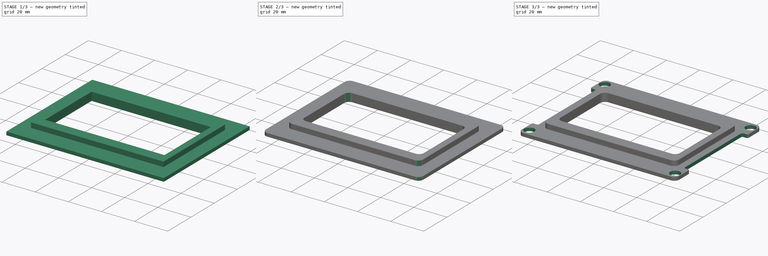
[diagram: build sequence overview — one tinted view per stage of 3, left to right]
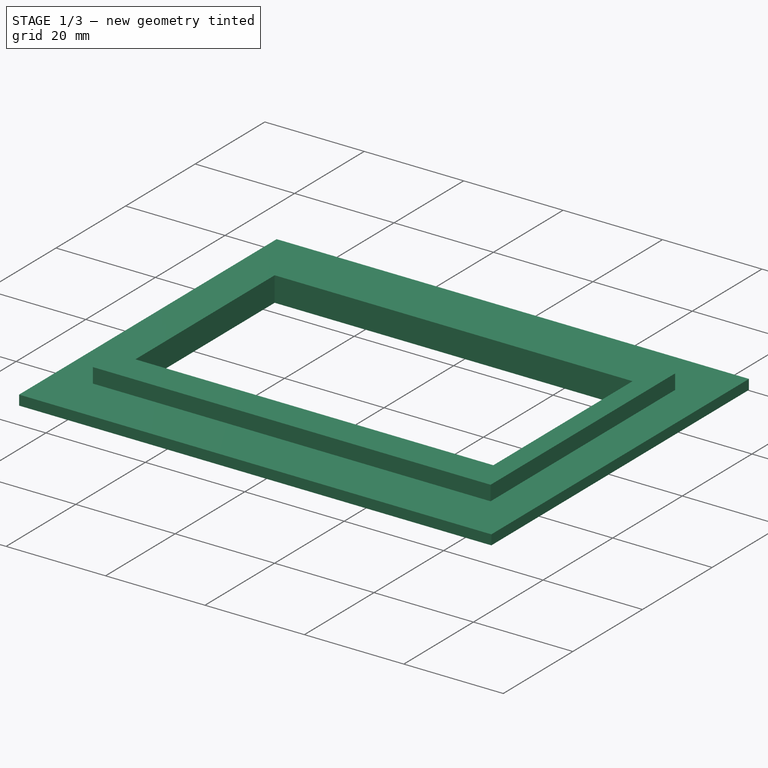
[diagram: stage 1 of 3 — iso view after this stage's code; geometry added in this stage tinted green]
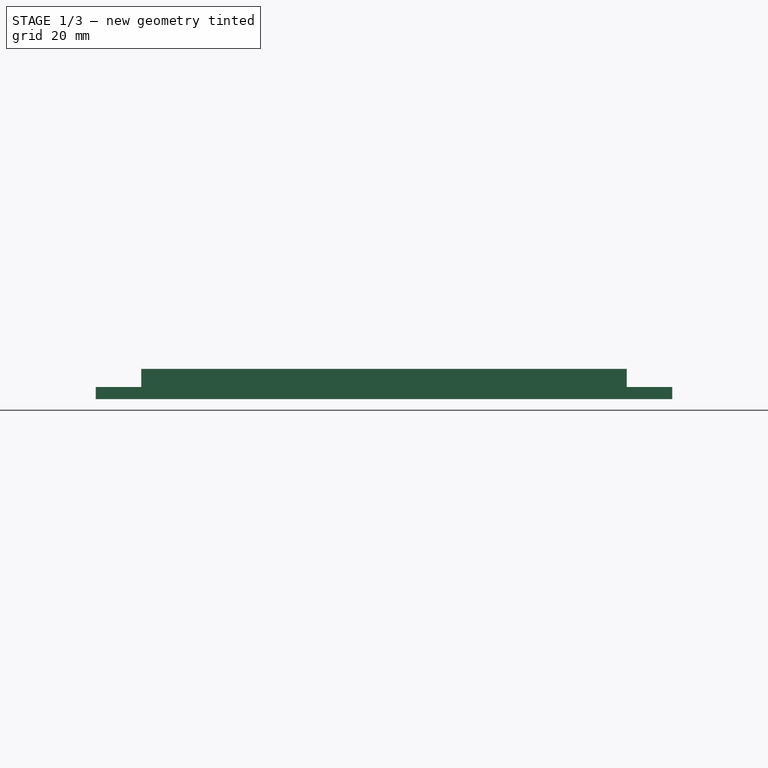
[diagram: stage 1 of 3 — front view after this stage's code; geometry added in this stage tinted green]
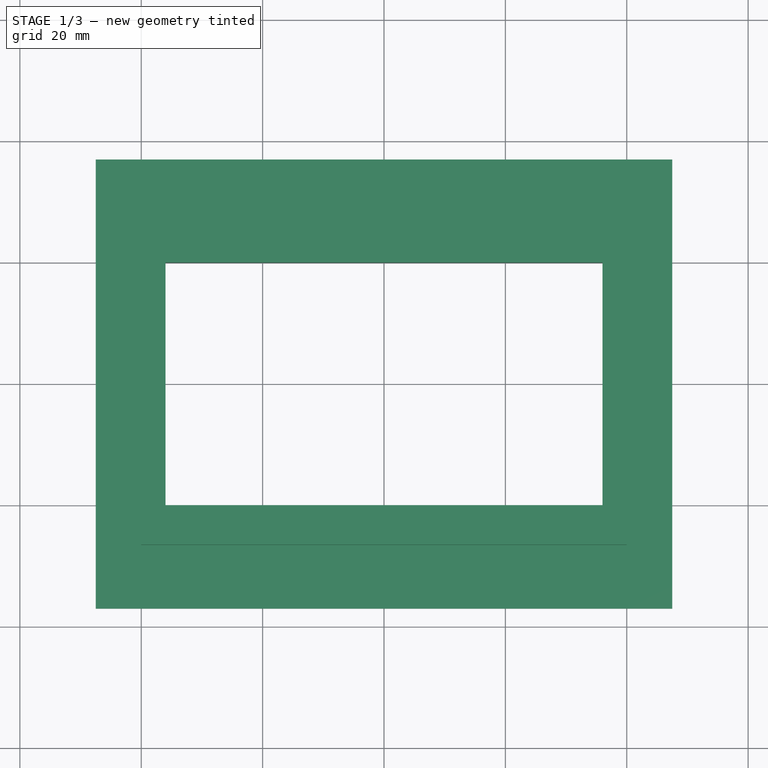
[diagram: stage 1 of 3 — top view after this stage's code; geometry added in this stage tinted green]
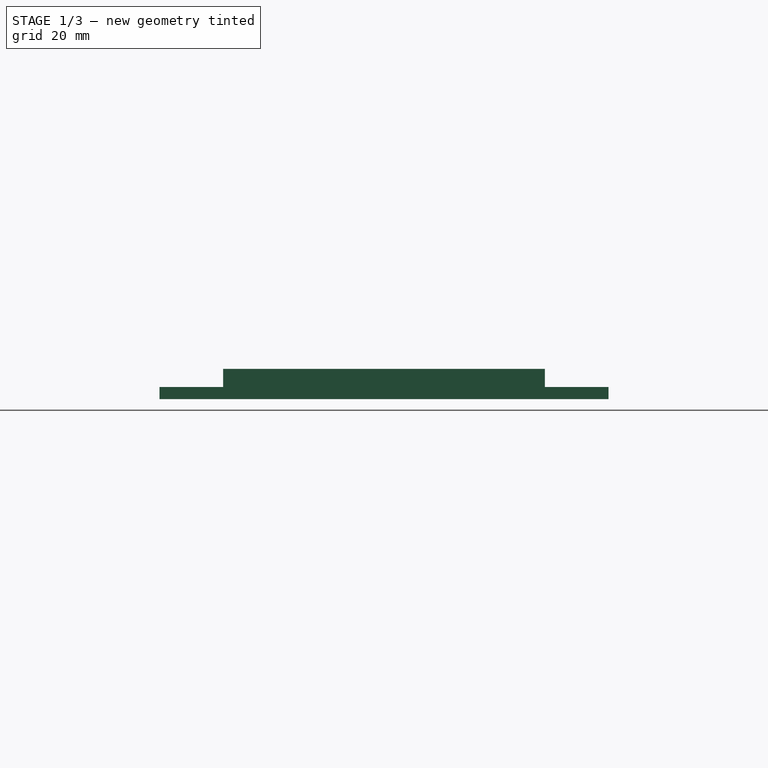
[diagram: stage 1 of 3 — right view after this stage's code; geometry added in this stage tinted green]
FCSTD DOCUMENT  (FreeCAD 0.16R6655 (Git))
Label: lcd_bezel_v1.1
License: All rights reserved
LicenseURL: http://en.wikipedia.org/wiki/All_rights_reserved
objects: Sketcher::SketchObject×6, PartDesign::Pocket×4, PartDesign::Fillet×3, Drawing::FeatureViewPart×3, Drawing::FeatureViewPython×3, PartDesign::Pad×1, Drawing::FeaturePage×1
note: 19 computed .brp shape members not serialized (recipe doc carries the construction recipe); baked Part::Feature solids carry a one-line shape summary decoded from their .brp

FEATURE [Sketcher::SketchObject] Sketch
  sketch-geometry (4):
    g0: LineSegment StartX=-47.5 StartY=37 StartZ=0 EndX=47.5 EndY=37 EndZ=0
    g1: LineSegment StartX=47.5 StartY=37 StartZ=0 EndX=47.5 EndY=-37 EndZ=0
    g2: LineSegment StartX=47.5 StartY=-37 StartZ=0 EndX=-47.5 EndY=-37 EndZ=0
    g3: LineSegment StartX=-47.5 StartY=-37 StartZ=0 EndX=-47.5 EndY=37 EndZ=0
  constraints (12):
    c: Coincident(g0,g1)
    c: Coincident(g1,g2)
    c: Coincident(g2,g3)
    c: Coincident(g3,g0)
    c: Horizontal(g0)
    c: Horizontal(g2)
    c: Vertical(g1)
    c: Vertical(g3)
    c: Distance(g0) = 95
    c: Distance(g1) = 74
    c: DistanceY(g-1,g1) = -37
    c: DistanceX(g-1,g0) = 47.5
FEATURE [PartDesign::Pad] Pad
  Length = 5
  Length2 = 100
  Sketch = -> Sketch
  Type = 0
FEATURE [Sketcher::SketchObject] Sketch002
  Placement = pos=(0,0,5) rot=(0,0,1;0rad)
  Support = -> Pad [Face6]
  sketch-geometry (4):
    g0: LineSegment StartX=-36 StartY=20 StartZ=0 EndX=36 EndY=20 EndZ=0
    g1: LineSegment StartX=36 StartY=20 StartZ=0 EndX=36 EndY=-20 EndZ=0
    g2: LineSegment StartX=36 StartY=-20 StartZ=0 EndX=-36 EndY=-20 EndZ=0
    g3: LineSegment StartX=-36 StartY=-20 StartZ=0 EndX=-36 EndY=20 EndZ=0
  constraints (12):
    c: Coincident(g0,g1)
    c: Coincident(g1,g2)
    c: Coincident(g2,g3)
    c: Coincident(g3,g0)
    c: Horizontal(g0)
    c: Horizontal(g2)
    c: Vertical(g1)
    c: Vertical(g3)
    c: DistanceX(g0) = 72
    c: DistanceY(g1) = -40
    c: DistanceY(g-1,g0) = 20
    c: DistanceX(g-1,g0) = 36
FEATURE [PartDesign::Pocket] Pocket
  Length = 5
  Sketch = -> Sketch002
  Type = 1
FEATURE [Sketcher::SketchObject] Sketch004
  Placement = pos=(0,0,5) rot=(0,0,1;0rad)
  Support = -> Pocket [Face5]
  sketch-geometry (8):
    g0: LineSegment StartX=-40 StartY=26.5 StartZ=0 EndX=40 EndY=26.5 EndZ=0
    g1: LineSegment StartX=40 StartY=26.5 StartZ=0 EndX=40 EndY=-26.5 EndZ=0
    g2: LineSegment StartX=40 StartY=-26.5 StartZ=0 EndX=-40 EndY=-26.5 EndZ=0
    g3: LineSegment StartX=-40 StartY=-26.5 StartZ=0 EndX=-40 EndY=26.5 EndZ=0
    g4: LineSegment StartX=-60.6887 StartY=46.8278 StartZ=0 EndX=56.9732 EndY=46.8278 EndZ=0
    g5: LineSegment StartX=56.9732 StartY=46.8278 StartZ=0 EndX=56.9732 EndY=-45.6053 EndZ=0
    g6: LineSegment StartX=56.9732 StartY=-45.6053 StartZ=0 EndX=-60.6887 EndY=-45.6053 EndZ=0
    g7: LineSegment StartX=-60.6887 StartY=-45.6053 StartZ=0 EndX=-60.6887 EndY=46.8278 EndZ=0
  constraints (20):
    c: Coincident(g0,g1)
    c: Coincident(g1,g2)
    c: Coincident(g2,g3)
    c: Coincident(g3,g0)
    c: Horizontal(g0)
    c: Horizontal(g2)
    c: Vertical(g1)
    c: Vertical(g3)
    c: DistanceX(g0) = 80
    c: DistanceX(g-1,g0) = 40
    c: DistanceY(g1) = -53
    c: DistanceY(g-1,g0) = 26.5
    c: Coincident(g4,g5)
    c: Coincident(g5,g6)
    c: Coincident(g6,g7)
    c: Coincident(g7,g4)
    c: Horizontal(g4)
    c: Horizontal(g6)
    c: Vertical(g5)
    c: Vertical(g7)
FEATURE [PartDesign::Pocket] Pocket001
  Length = 3
  Sketch = -> Sketch004
  Type = 0
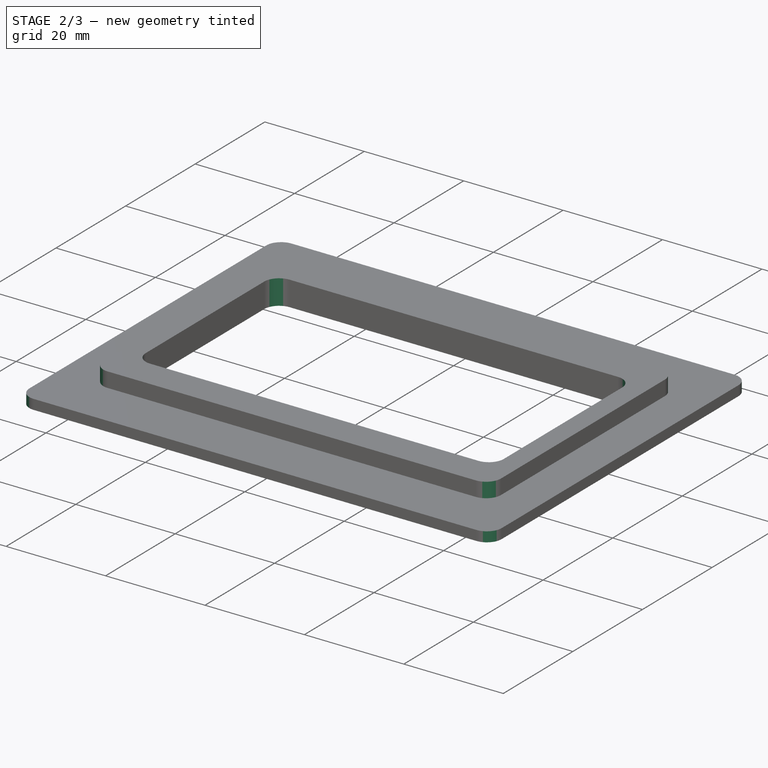
[diagram: stage 2 of 3 — iso view after this stage's code; geometry added in this stage tinted green]
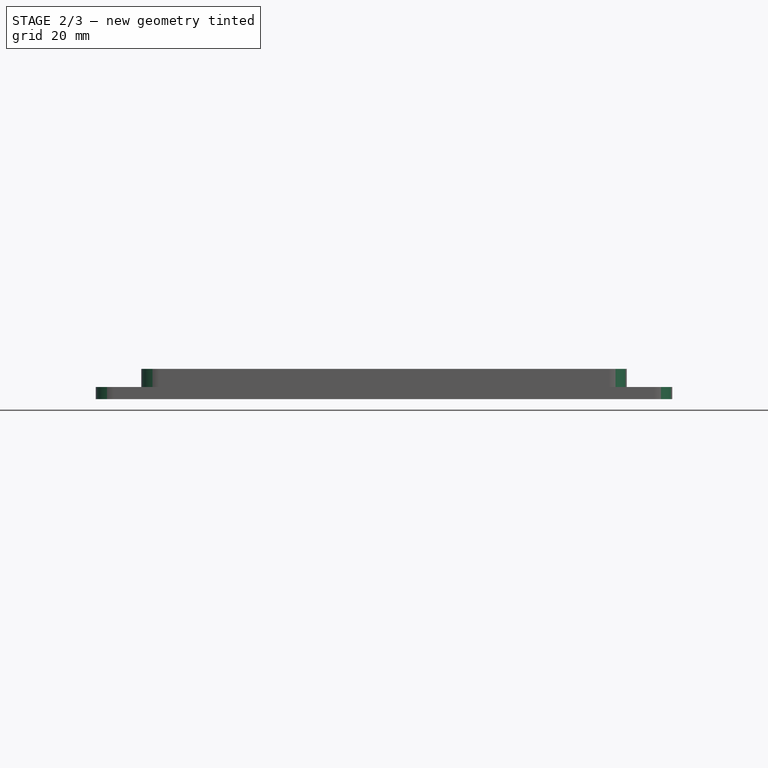
[diagram: stage 2 of 3 — front view after this stage's code; geometry added in this stage tinted green]
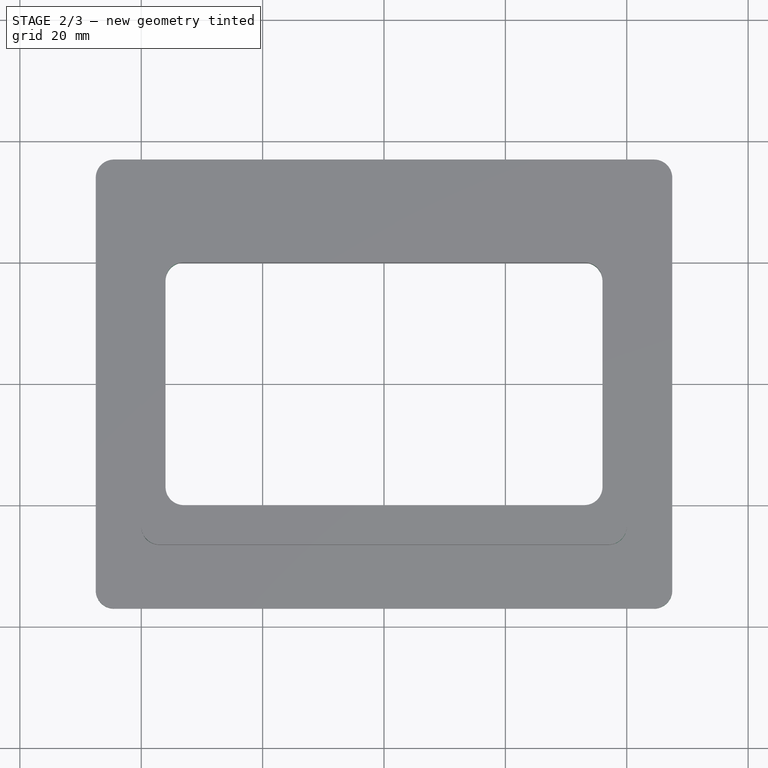
[diagram: stage 2 of 3 — top view after this stage's code; geometry added in this stage tinted green]
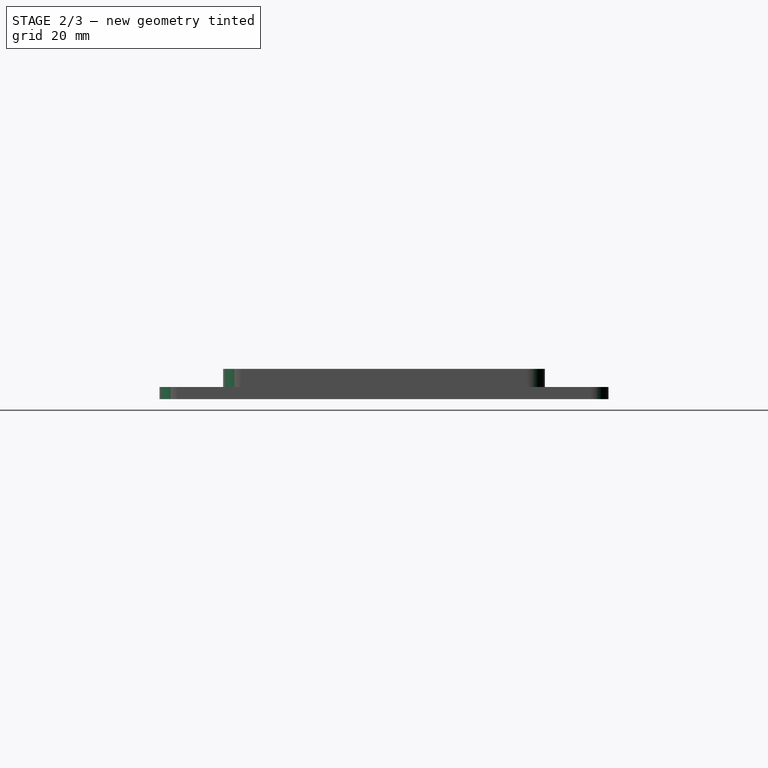
[diagram: stage 2 of 3 — right view after this stage's code; geometry added in this stage tinted green]
FEATURE [PartDesign::Fillet] Fillet
  Base = -> Pocket001 [Edge23,Edge22,Edge27,Edge25]
  Radius = 3
FEATURE [PartDesign::Fillet] Fillet001
  Base = -> Fillet [Edge47,Edge29,Edge34,Edge48,Edge33,Edge45,Edge46,Edge31]
  Radius = 3
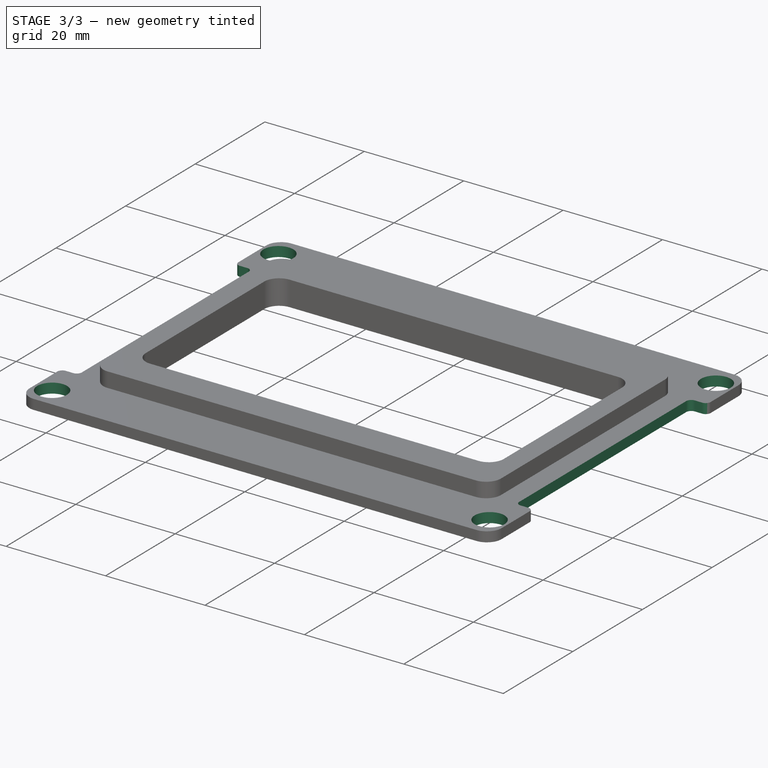
[diagram: stage 3 of 3 — iso view after this stage's code; geometry added in this stage tinted green]
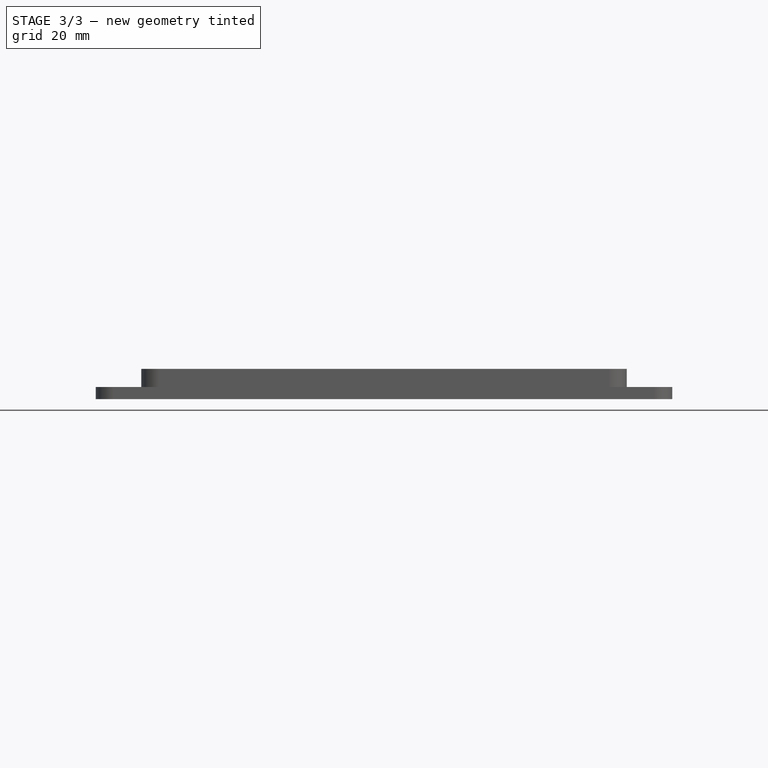
[diagram: stage 3 of 3 — front view after this stage's code; geometry added in this stage tinted green]
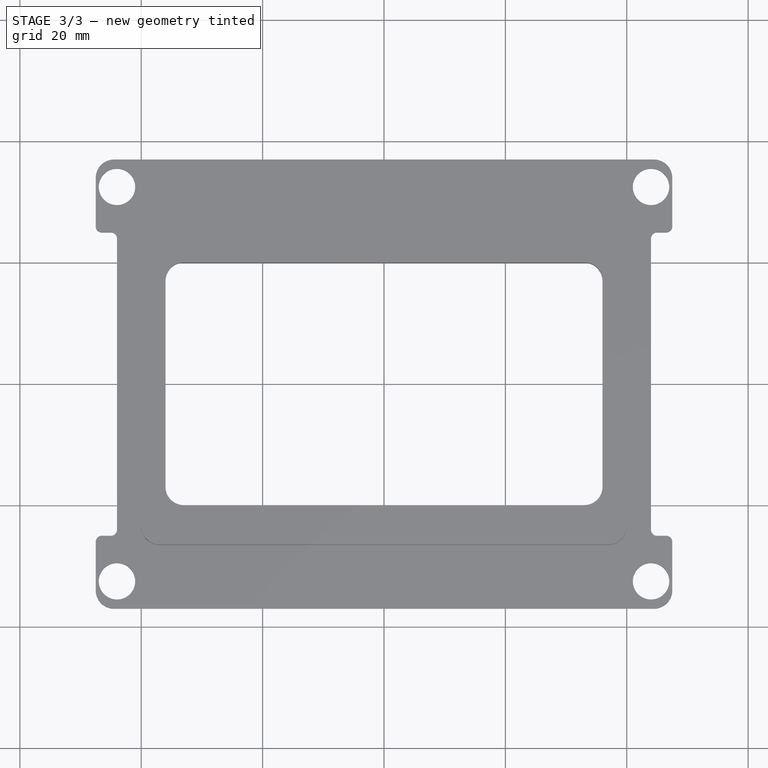
[diagram: stage 3 of 3 — top view after this stage's code; geometry added in this stage tinted green]
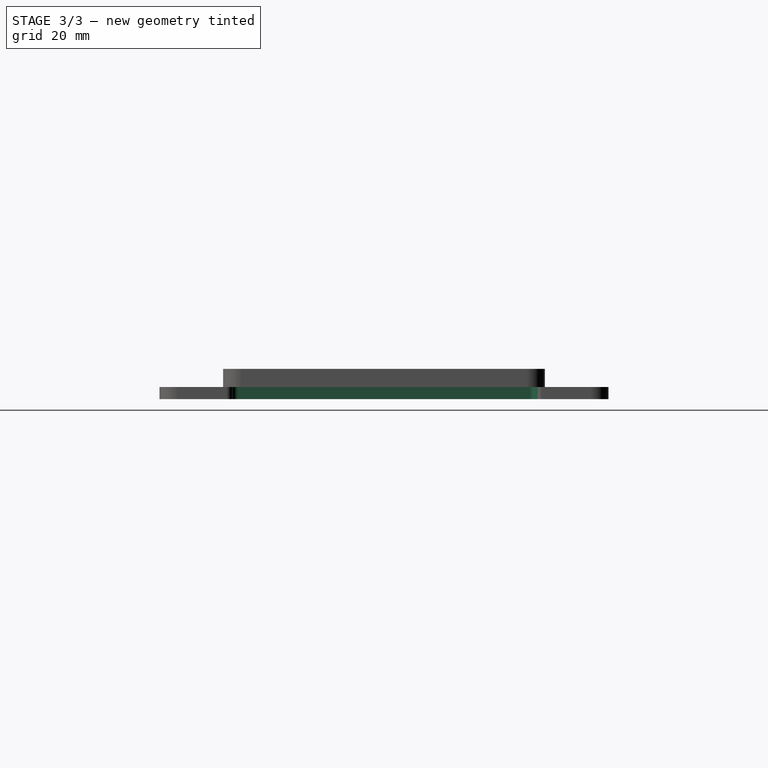
[diagram: stage 3 of 3 — right view after this stage's code; geometry added in this stage tinted green]
FEATURE [Sketcher::SketchObject] Sketch005
  Placement = pos=(0,0,2) rot=(0,0,1;0rad)
  Support = -> Fillet001 [Face18]
  sketch-geometry (8):
    g0: LineSegment [constr] StartX=-44 StartY=32.5 StartZ=0 EndX=44 EndY=32.5 EndZ=0
    g1: LineSegment [constr] StartX=44 StartY=32.5 StartZ=0 EndX=44 EndY=-32.5 EndZ=0
    g2: LineSegment [constr] StartX=44 StartY=-32.5 StartZ=0 EndX=-44 EndY=-32.5 EndZ=0
    g3: LineSegment [constr] StartX=-44 StartY=-32.5 StartZ=0 EndX=-44 EndY=32.5 EndZ=0
    g4: Circle CenterX=-44 CenterY=32.5 CenterZ=0 NormalX=0 NormalY=0 NormalZ=1 Radius=3
    g5: Circle CenterX=44 CenterY=32.5 CenterZ=0 NormalX=0 NormalY=0 NormalZ=1 Radius=3
    g6: Circle CenterX=44 CenterY=-32.5 CenterZ=0 NormalX=0 NormalY=0 NormalZ=1 Radius=3
    g7: Circle CenterX=-44 CenterY=-32.5 CenterZ=0 NormalX=0 NormalY=0 NormalZ=1 Radius=3
  constraints (20):
    c: Coincident(g0,g1)
    c: Coincident(g1,g2)
    c: Coincident(g2,g3)
    c: Coincident(g3,g0)
    c: Horizontal(g0)
    c: Horizontal(g2)
    c: Vertical(g1)
    c: Vertical(g3)
    c: DistanceX(g0) = 88
    c: DistanceX(g-1,g0) = 44
    c: DistanceY(g1) = -65
    c: DistanceY(g-1,g1) = -32.5
    c: Coincident(g0,g4)
    c: Coincident(g0,g5)
    c: Coincident(g1,g6)
    c: Coincident(g2,g7)
    c: Radius(g7) = 3
    c: Equal(g7,g4)
    c: Equal(g4,g5)
    c: Equal(g5,g6)
FEATURE [PartDesign::Pocket] Pocket002
  Length = 5
  Sketch = -> Sketch005
  Type = 0
FEATURE [Sketcher::SketchObject] Sketch006
  Placement = pos=(0,0,2) rot=(0,0,1;0rad)
  Support = -> Pocket002 [Face22]
  sketch-geometry (8):
    g0: LineSegment StartX=44 StartY=25 StartZ=0 EndX=49.4779 EndY=25 EndZ=0
    g1: LineSegment StartX=49.4779 StartY=25 StartZ=0 EndX=49.4779 EndY=-25 EndZ=0
    g2: LineSegment StartX=49.4779 StartY=-25 StartZ=0 EndX=44 EndY=-25 EndZ=0
    g3: LineSegment StartX=44 StartY=-25 StartZ=0 EndX=44 EndY=25 EndZ=0
    g4: LineSegment StartX=-49.9315 StartY=25 StartZ=0 EndX=-44 EndY=25 EndZ=0
    g5: LineSegment StartX=-44 StartY=25 StartZ=0 EndX=-44 EndY=-25 EndZ=0
    g6: LineSegment StartX=-44 StartY=-25 StartZ=0 EndX=-49.9315 EndY=-25 EndZ=0
    g7: LineSegment StartX=-49.9315 StartY=-25 StartZ=0 EndX=-49.9315 EndY=25 EndZ=0
  constraints (22):
    c: Coincident(g0,g1)
    c: Coincident(g1,g2)
    c: Coincident(g2,g3)
    c: Coincident(g3,g0)
    c: Horizontal(g0)
    c: Horizontal(g2)
    c: Vertical(g1)
    c: Vertical(g3)
    c: Coincident(g4,g5)
    c: Coincident(g5,g6)
    c: Coincident(g6,g7)
    c: Coincident(g7,g4)
    c: Horizontal(g4)
    c: Horizontal(g6)
    c: Vertical(g5)
    c: Vertical(g7)
    c: DistanceX(g-1,g0) = 44
    c: DistanceY(g-1,g0) = 25
    c: DistanceY(g1) = -50
    c: Equal(g3,g5)
    c: DistanceY(g-1,g4) = 25
    c: DistanceX(g-1,g4) = -44
FEATURE [PartDesign::Pocket] Pocket003
  Length = 5
  Sketch = -> Sketch006
  Type = 0
FEATURE [PartDesign::Fillet] Fillet002
  Base = -> Pocket003 [Edge57,Edge55,Edge53,Edge50,Edge41,Edge39,Edge37,Edge34]
  Radius = 1
FEATURE [Sketcher::SketchObject] Sketch007
  ExternalGeometry = -> [Fillet002]
  Placement = pos=(0,0,5) rot=(0,0,1;0rad)
  Support = -> Fillet002 [Face39]
  constraints (2):
    c: DistanceY(g-4,g-3) = 6.5
    c: DistanceX(g-5,g-6) = 4
FEATURE [Drawing::FeatureViewPart] Ortho  label="Ortho_0_0"
  Direction = (1,0,0)
  HiddenWidth = 0.15
  LineWidth = 0.35
  Rotation = 0
  Scale = 5
  ShowHiddenLines = false
  ShowSmoothLines = false
  Source = -> Fillet002
  Tolerance = 0.05
  ViewResult = <blob: 3386 chars omitted>
  Visible = true
  X = 582
  Y = 420.5
FEATURE [Drawing::FeatureViewPart] Ortho003  label="Ortho_1_0"
  Direction = (0,0,1)
  HiddenWidth = 0.15
  LineWidth = 0.35
  Rotation = 180
  Scale = 5
  ShowHiddenLines = false
  ShowSmoothLines = false
  Source = -> Fillet002
  Tolerance = 0.05
  ViewResult = <blob: 2136 chars omitted>
  Visible = true
  X = 898
  Y = 420.5
FEATURE [Drawing::FeatureViewPart] Ortho004  label="Ortho_-1_0"
  Direction = (0,0,-1)
  HiddenWidth = 0.15
  LineWidth = 0.35
  Rotation = 180
  Scale = 5
  ShowHiddenLines = false
  ShowSmoothLines = false
  Source = -> Fillet002
  Tolerance = 0.05
  ViewResult = <g id="Ortho_-1_0"\n   transform="rotate(180,291,420.5) translate(291,420.5) scale(5,5)"\n  >\n<g   stroke="rgb(0, 0, 0)"\n   stroke-width="0.07"\n   stroke-linecap="butt"\n   stroke-linejoin="miter"\n   fill="none"\n   transform="scale(1,-1)"\n  >\n<path id= "1" d=" M -47.5 34 L -47.5 26 " />\n<path d="M-47.5 26 A1 1 0 0 1 -46.5 25" /><path d="M-44.5 37 A3 3 0 0 1 -47.5 34" /><path id= "4" d=" M -45 25 L -46.5 25 " />\n<path id= "5" d=" M 44.5 37 L -44.5 37 " />\n<path d="M-45 25 A1 1 0 0 0 -44 24" /><path d="M44.5 37 A3 3 0 0 0 47.5 34" /><path id= "8" d=" M -44 -24 L -44 24 " />\n<path id= "9" d=" M 47.5 26 L 47.5 34 " />\n<path d="M-44 -24 A1 1 0 0 0 -45 -25" /><path d="M46.5 25 A1 1 0 0 1 47.5 26" /><path id= "12" d=" M -46.5 -25 L -45 -25 " />\n<path id= "13" d=" M 46.5 25 L 45 25 " />\n<path d="M-46.5 -25 A1 1 0 0 1 -47.5 -26" /><path d="M44 24 A1 1 0 0 0 45 25" /><path id= "16" d=" M -47.5 -26 L -47.5 -34 " />\n<path id= "17" d=" M 44 24 L 44 -24 " />\n<path d="M-47.5 -34 A3 3 0 0 1 -44.5 -37" /><path d="M45 -25 A1 1 0 0 0 44 -24" /><path id= "20" d=" M -44.5 -37 L 44.5 -37 " />\n<path id= "21" d=" M 45 -25 L 46.5 -25 " />\n<path d="M47.5 -34 A3 3 0 0 0 44.5 -37" /><path d="M47.5 -26 A1 1 0 0 1 46.5 -25" /><path id= "24" d=" M 47.5 -34 L 47.5 -26 " />\n<circle cx ="-44" cy ="32.5" r ="3" /><circle cx ="44" cy ="32.5" r ="3" /><circle cx ="44" cy ="-32.5" r ="3" /><path id= "28" d=" M 33 20 L -33 20 " />\n<path d="M33 20 A3 3 0 0 0 36 17" /><path d="M-33 20 A3 3 0 0 1 -36 17" /><path id= "31" d=" M 36 -17 L 36 17 " />\n<path id= "32" d=" M -36 17 L -36 -17 " />\n<path d="M36 -17 A3 3 0 0 0 33 -20" /><path d="M-33 -20 A3 3 0 0 0 -36 -17" /><path id= "35" d=" M -33 -20 L 33 -20 " />\n<circle cx ="-44" cy ="-32.5" r ="3" /></g>\n</g>
  Visible = true
  X = 291
  Y = 420.5
FEATURE [Drawing::FeatureViewPython] grabPoint001  # drawing view (typed FeaturePython)
  Rotation = 0
  ViewResult = <g> <line x1="790.99145379" y1="303.740718255" x2="790.99145379" y2="303.740718255" style="stroke:rgb(0,0,0);stroke-width:0.01" /> </g> 
  Visible = true
  X = 0
  Y = 0
  click1_x = 790.991
  click1_y = 303.741
FEATURE [Drawing::FeatureViewPython] text002  # drawing view (typed FeaturePython)
  Rotation = 0
  ViewResult = <g> <text x="893.445120" y="203.143233" font-family="inherit" font-size="10" fill="rgb(0,0,0)" text-anchor="inherit" transform="rotate(0.000000 893.445120,203.143233)" >'A' SURFACE</text> </g>
  Visible = true
  X = 0
  Y = 0
  click1_x = 893.445
  click1_y = 203.143
  rotation = 0
  text = 'A' SURFACE
  textRenderer_addText_color = rgb(0,0,0)
  textRenderer_addText_family = inherit
  textRenderer_addText_size = 10
FEATURE [Drawing::FeatureViewPython] weld001  # drawing view (typed FeaturePython)
  Rotation = 0
  ViewResult = <g   >\n<line x1="850.052149" y1="201.439157" x2="790.991454" y2="303.740718" style="stroke:rgb(0,0,255);stroke-width:0.50" />\n<polygon points="790.991454,303.740718 793.357431,301.642588 792.991374,300.276571 791.625357,300.642627" style="fill:rgb(0,0,255);stroke:rgb(0,0,255);stroke-width:0" />\n<line x1="850.052149" y1="201.439157" x2="884.855773" y2="201.439157" style="stroke:rgb(0,0,255);stroke-width:0.50" />\n</g> 
  Visible = true
  X = 0
  Y = 0
  arrowL1 = 3
  arrowL2 = 1
  arrowW = 2
  click1_x = 850.052
  click1_y = 201.439
  click2_x = 884.856
  click2_y = 208.822
  lineColor = rgb(0,0,255)
  strokeWidth = 0.5
  textRenderer_color = rgb(0,0,255)
  textRenderer_family = inherit
  textRenderer_size = 3.6
FEATURE [Drawing::FeaturePage] Page  label="cosmetics"
  Group = -> [Ortho,Ortho003,Ortho004,grabPoint001,text002,weld001]
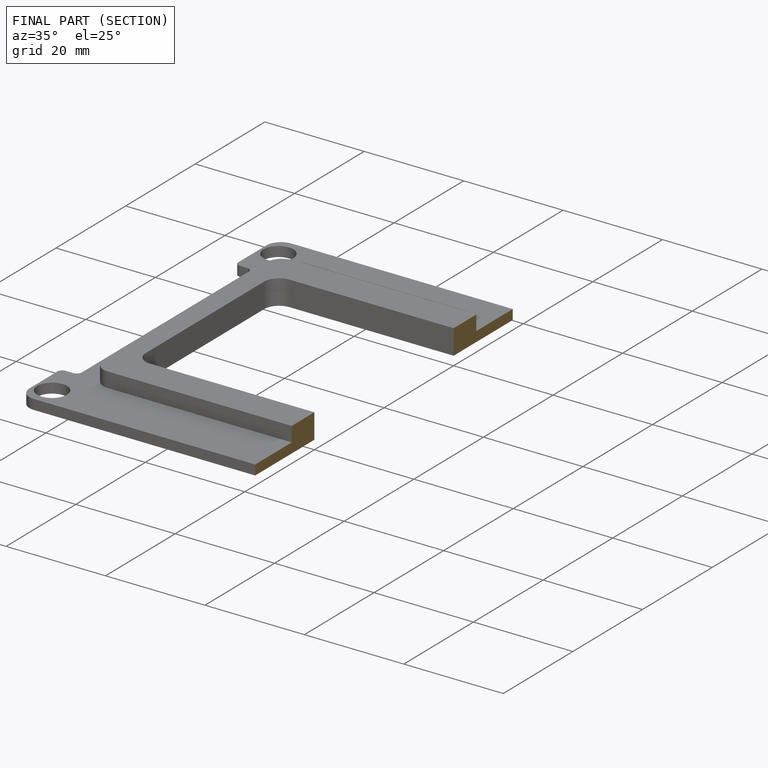
[diagram: finished part — half-section view (interior)]
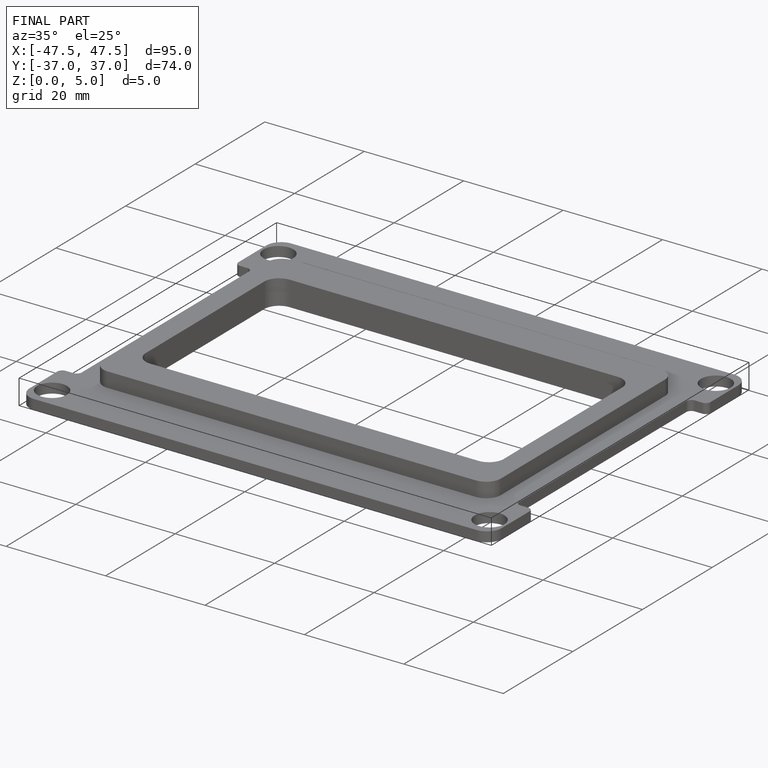
[diagram: finished part — iso view with bounding-box wireframe]
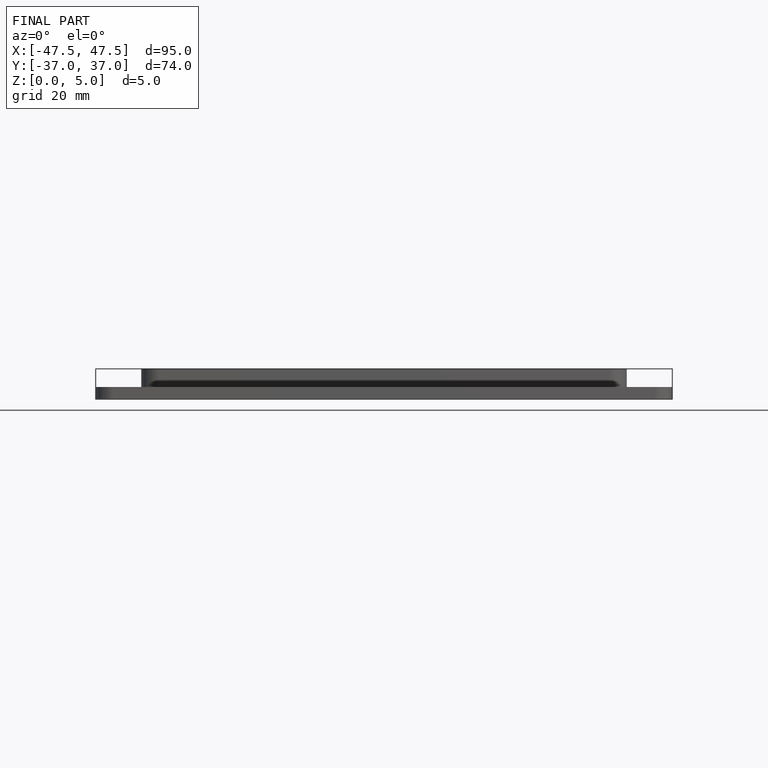
[diagram: finished part — front view with bounding-box wireframe]
